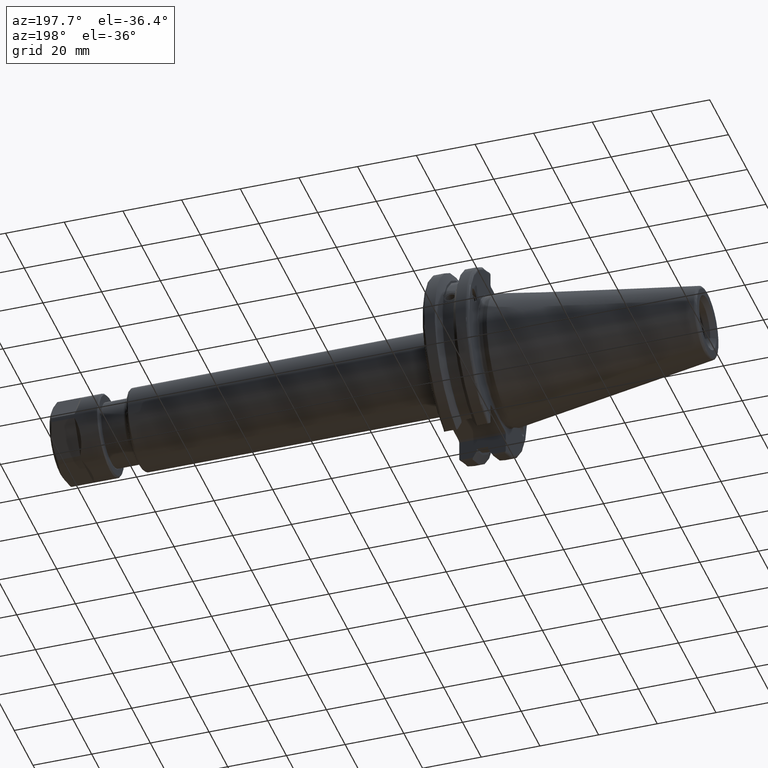
[diagram: clean part render]
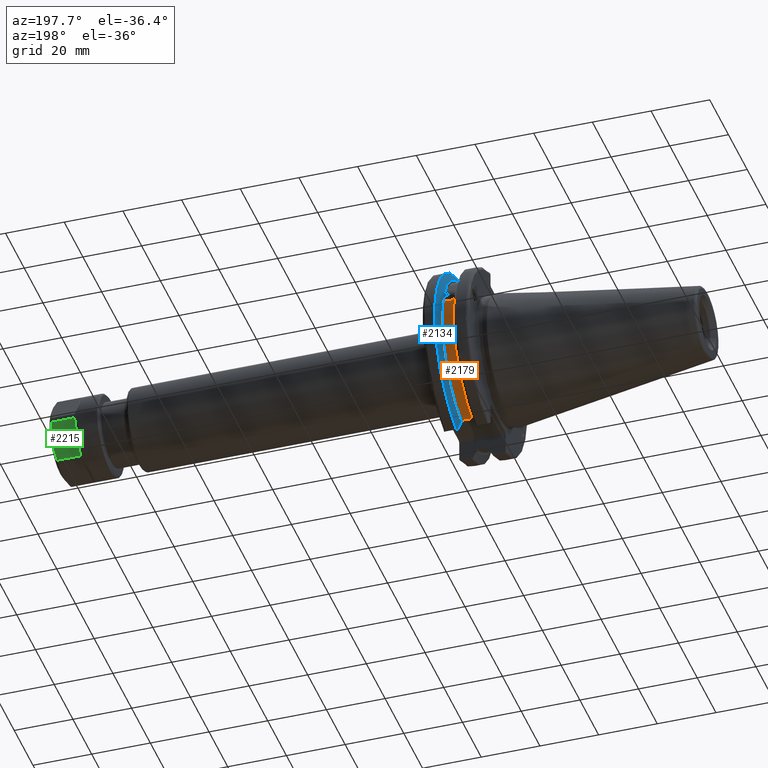
[diagram: same view with three faces highlighted in distinct colors, each labeled with its STEP entity id]
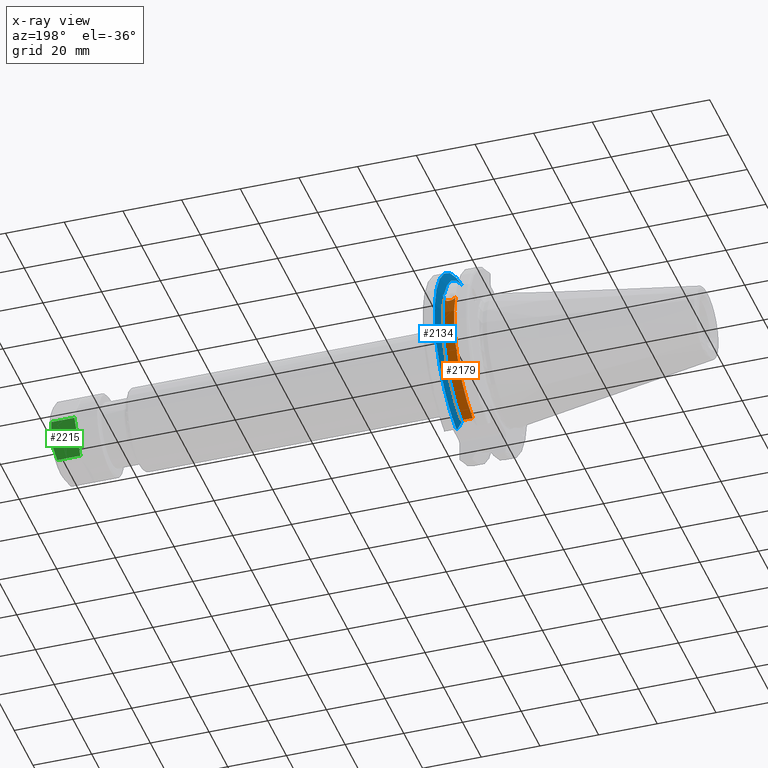
[diagram: x-ray of the same camera — body ghosted, the three highlighted faces saturated]
A machine part, auxiliary view with three faces highlighted in distinct colors.
The next image is the same camera in x-ray (body ghosted, the three faces saturated) — at least one of them is partly hidden behind the body in this view.
Their STEP definitions:

[orange] entity #2179 — the highlighted cylindrical surface (partial cylindrical patch) has radius 28.15 mm, axis along (1, 0, 0).
#134=B_SPLINE_CURVE_WITH_KNOTS('',3,(#3584,#3585,#3586,#3587,#3588,#3589,
#3590,#3591,#3592,#3593,#3594,#3595,#3596,#3597),.UNSPECIFIED.,.F.,.F.,
(4,2,2,2,2,2,4),(0.401639126382404,0.474814416953736,0.553950208498303,
0.63308600004287,0.712221791587437,0.791357583132004,0.864532873703335),
 .UNSPECIFIED.);
#257=CYLINDRICAL_SURFACE('',#2471,28.15);
#349=FACE_OUTER_BOUND('',#486,.T.);
#486=EDGE_LOOP('',(#1883,#1884,#1885,#1886));
#600=LINE('',#3784,#732);
#732=VECTOR('',#2877,10.);
#875=CIRCLE('',#2468,28.15);
#877=CIRCLE('',#2472,28.15);
#992=VERTEX_POINT('',#3581);
#993=VERTEX_POINT('',#3583);
#1035=VERTEX_POINT('',#3781);
#1036=VERTEX_POINT('',#3783);
#1234=EDGE_CURVE('',#993,#992,#134,.T.);
#1290=EDGE_CURVE('',#1036,#1035,#600,.T.);
#1351=EDGE_CURVE('',#1035,#993,#875,.T.);
#1353=EDGE_CURVE('',#1036,#992,#877,.T.);
#1883=ORIENTED_EDGE('',*,*,#1234,.T.);
#1884=ORIENTED_EDGE('',*,*,#1353,.F.);
#1885=ORIENTED_EDGE('',*,*,#1290,.T.);
#1886=ORIENTED_EDGE('',*,*,#1351,.T.);
#2179=ADVANCED_FACE('',(#349),#257,.T.);
#2468=AXIS2_PLACEMENT_3D('',#3985,#2995,#2996);
#2471=AXIS2_PLACEMENT_3D('',#3988,#3001,#3002);
#2472=AXIS2_PLACEMENT_3D('',#3989,#3003,#3004);
#2877=DIRECTION('',(-1.,0.,0.));
#2995=DIRECTION('center_axis',(1.,0.,0.));
#2996=DIRECTION('ref_axis',(0.,0.,-1.));
#3001=DIRECTION('center_axis',(1.,0.,0.));
#3002=DIRECTION('ref_axis',(0.,1.,0.));
#3003=DIRECTION('center_axis',(1.,0.,0.));
#3004=DIRECTION('ref_axis',(0.,0.,-1.));
#3581=CARTESIAN_POINT('',(13.042,26.734714844398,8.81348524641211));
#3583=CARTESIAN_POINT('',(9.212,26.734714844398,8.81348524641211));
#3584=CARTESIAN_POINT('Ctrl Pts',(9.212,26.734714844398,8.81348524641212));
#3585=CARTESIAN_POINT('Ctrl Pts',(9.31823057097183,26.8086519721597,8.58920529678291));
#3586=CARTESIAN_POINT('Ctrl Pts',(9.46972013770509,26.8729987454904,8.3841652999737));
#3587=CARTESIAN_POINT('Ctrl Pts',(9.8284706265741,26.9778908791383,8.04056861831092));
#3588=CARTESIAN_POINT('Ctrl Pts',(10.0645450112988,27.0233016799732,7.88512567185903));
#3589=CARTESIAN_POINT('Ctrl Pts',(10.5819125426388,27.0826966800569,7.6786444840004));
#3590=CARTESIAN_POINT('Ctrl Pts',(10.8632140281848,27.0968804077294,7.62768458768513));
#3591=CARTESIAN_POINT('Ctrl Pts',(11.3907859718152,27.0968804077294,7.62768458768513));
#3592=CARTESIAN_POINT('Ctrl Pts',(11.6720874573612,27.0826966800569,7.6786444840004));
#3593=CARTESIAN_POINT('Ctrl Pts',(12.1894549887012,27.0233016799732,7.88512567185903));
#3594=CARTESIAN_POINT('Ctrl Pts',(12.4255293734259,26.9778908791383,8.04056861831092));
#3595=CARTESIAN_POINT('Ctrl Pts',(12.7842798622949,26.8729987454904,8.3841652999737));
#3596=CARTESIAN_POINT('Ctrl Pts',(12.9357694290282,26.8086519721597,8.58920529678291));
#3597=CARTESIAN_POINT('Ctrl Pts',(13.042,26.734714844398,8.81348524641212));
#3781=CARTESIAN_POINT('',(9.212,8.19,-26.932255754021));
#3783=CARTESIAN_POINT('',(13.042,8.19,-26.932255754021));
#3784=CARTESIAN_POINT('',(11.127,8.19,-26.932255754021));
#3985=CARTESIAN_POINT('Origin',(9.212,0.,0.));
#3988=CARTESIAN_POINT('Origin',(11.127,0.,0.));
#3989=CARTESIAN_POINT('Origin',(13.042,0.,0.));

[blue] entity #2134 — the highlighted conical surface has half-angle 60 deg.
#69=(
BOUNDED_CURVE()
B_SPLINE_CURVE(2,(#3648,#3649,#3650),.UNSPECIFIED.,.F.,.F.)
B_SPLINE_CURVE_WITH_KNOTS((3,3),(0.,0.276549142796799),.UNSPECIFIED.)
CURVE()
GEOMETRIC_REPRESENTATION_ITEM()
RATIONAL_B_SPLINE_CURVE((1.,1.00095203904259,1.00031614445126))
REPRESENTATION_ITEM('')
);
#70=(
BOUNDED_CURVE()
B_SPLINE_CURVE(2,(#3652,#3653,#3654),.UNSPECIFIED.,.F.,.F.)
B_SPLINE_CURVE_WITH_KNOTS((3,3),(0.,0.0639048713675657),.UNSPECIFIED.)
CURVE()
GEOMETRIC_REPRESENTATION_ITEM()
RATIONAL_B_SPLINE_CURVE((1.,1.00028444218289,1.00047644010584))
REPRESENTATION_ITEM('')
);
#71=(
BOUNDED_CURVE()
B_SPLINE_CURVE(2,(#3658,#3659,#3660),.UNSPECIFIED.,.F.,.F.)
B_SPLINE_CURVE_WITH_KNOTS((3,3),(0.329353533631213,0.393258405001023),
 .UNSPECIFIED.)
CURVE()
GEOMETRIC_REPRESENTATION_ITEM()
RATIONAL_B_SPLINE_CURVE((1.00047644010591,1.00028444218294,1.))
REPRESENTATION_ITEM('')
);
#72=(
BOUNDED_CURVE()
B_SPLINE_CURVE(2,(#3662,#3663,#3664),.UNSPECIFIED.,.F.,.F.)
B_SPLINE_CURVE_WITH_KNOTS((3,3),(0.0550586467390499,0.33160778953585),
 .UNSPECIFIED.)
CURVE()
GEOMETRIC_REPRESENTATION_ITEM()
RATIONAL_B_SPLINE_CURVE((1.00031614445126,1.00095203904259,1.))
REPRESENTATION_ITEM('')
);
#133=B_SPLINE_CURVE_WITH_KNOTS('',3,(#3573,#3574,#3575,#3576,#3577,#3578,
#3579,#3580),.UNSPECIFIED.,.F.,.F.,(4,2,2,4),(0.451995700189024,0.46454782854766,
0.504528771685165,0.544509714822671),.UNSPECIFIED.);
#137=B_SPLINE_CURVE_WITH_KNOTS('',3,(#3635,#3636,#3637,#3638,#3639,#3640,
#3641,#3642),.UNSPECIFIED.,.F.,.F.,(4,2,2,4),(0.544509714822671,0.584490657960176,
0.624471601097681,0.637023729456318),.UNSPECIFIED.);
#304=FACE_OUTER_BOUND('',#436,.T.);
#436=EDGE_LOOP('',(#1639,#1640,#1641,#1642,#1643,#1644,#1645,#1646,#1647));
#844=CIRCLE('',#2393,28.9593772964944);
#845=CIRCLE('',#2394,31.75);
#846=CIRCLE('',#2395,28.9593772964944);
#990=VERTEX_POINT('',#3570);
#991=VERTEX_POINT('',#3572);
#998=VERTEX_POINT('',#3633);
#999=VERTEX_POINT('',#3645);
#1000=VERTEX_POINT('',#3647);
#1001=VERTEX_POINT('',#3651);
#1002=VERTEX_POINT('',#3655);
#1003=VERTEX_POINT('',#3657);
#1004=VERTEX_POINT('',#3661);
#1232=EDGE_CURVE('',#991,#990,#133,.T.);
#1240=EDGE_CURVE('',#990,#998,#137,.T.);
#1241=EDGE_CURVE('',#998,#999,#844,.T.);
#1242=EDGE_CURVE('',#999,#1000,#69,.T.);
#1243=EDGE_CURVE('',#1001,#1000,#70,.T.);
#1244=EDGE_CURVE('',#1002,#1001,#845,.T.);
#1245=EDGE_CURVE('',#1003,#1002,#71,.T.);
#1246=EDGE_CURVE('',#1003,#1004,#72,.T.);
#1247=EDGE_CURVE('',#1004,#991,#846,.T.);
#1639=ORIENTED_EDGE('',*,*,#1232,.T.);
#1640=ORIENTED_EDGE('',*,*,#1240,.T.);
#1641=ORIENTED_EDGE('',*,*,#1241,.T.);
#1642=ORIENTED_EDGE('',*,*,#1242,.T.);
#1643=ORIENTED_EDGE('',*,*,#1243,.F.);
#1644=ORIENTED_EDGE('',*,*,#1244,.F.);
#1645=ORIENTED_EDGE('',*,*,#1245,.F.);
#1646=ORIENTED_EDGE('',*,*,#1246,.T.);
#1647=ORIENTED_EDGE('',*,*,#1247,.T.);
#2086=CONICAL_SURFACE('',#2392,30.3546886482472,1.0471975511966);
#2134=ADVANCED_FACE('',(#304),#2086,.T.);
#2392=AXIS2_PLACEMENT_3D('',#3644,#2793,#2794);
#2393=AXIS2_PLACEMENT_3D('',#3646,#2795,#2796);
#2394=AXIS2_PLACEMENT_3D('',#3656,#2797,#2798);
#2395=AXIS2_PLACEMENT_3D('',#3665,#2799,#2800);
#2793=DIRECTION('center_axis',(1.,0.,0.));
#2794=DIRECTION('ref_axis',(0.,1.,0.));
#2795=DIRECTION('center_axis',(1.,0.,0.));
#2796=DIRECTION('ref_axis',(0.,0.,-1.));
#2797=DIRECTION('center_axis',(1.,0.,0.));
#2798=DIRECTION('ref_axis',(0.,0.,-1.));
#2799=DIRECTION('center_axis',(1.,0.,0.));
#2800=DIRECTION('ref_axis',(0.,0.,-1.));
#3570=CARTESIAN_POINT('',(13.227,27.51401829017,10.0142836826778));
#3572=CARTESIAN_POINT('',(13.042,27.4956274489925,9.09043478536247));
#3573=CARTESIAN_POINT('Ctrl Pts',(13.042,27.4956274489925,9.09043478536247));
#3574=CARTESIAN_POINT('Ctrl Pts',(13.0561204071996,27.5087667900418,9.12860597076219));
#3575=CARTESIAN_POINT('Ctrl Pts',(13.0695929817857,27.5206055003512,9.16696618806878));
#3576=CARTESIAN_POINT('Ctrl Pts',(13.122981441159,27.5642934663232,9.32791534028656));
#3577=CARTESIAN_POINT('Ctrl Pts',(13.1611197084175,27.5867382255984,9.46717946402648));
#3578=CARTESIAN_POINT('Ctrl Pts',(13.2133106446058,27.5847569104122,9.74771639360672));
#3579=CARTESIAN_POINT('Ctrl Pts',(13.227,27.559599249844,9.8890510252165));
#3580=CARTESIAN_POINT('Ctrl Pts',(13.227,27.51401829017,10.0142836826778));
#3633=CARTESIAN_POINT('',(13.042,26.9060914640648,10.7101715919071));
#3635=CARTESIAN_POINT('Ctrl Pts',(13.227,27.51401829017,10.0142836826778));
#3636=CARTESIAN_POINT('Ctrl Pts',(13.227,27.4684373304961,10.139516340139));
#3637=CARTESIAN_POINT('Ctrl Pts',(13.2133106446058,27.3968610665578,10.2639559818059));
#3638=CARTESIAN_POINT('Ctrl Pts',(13.1611197084175,27.2180531796526,10.4801333026531));
#3639=CARTESIAN_POINT('Ctrl Pts',(13.122981441159,27.1113422433189,10.5723885976054));
#3640=CARTESIAN_POINT('Ctrl Pts',(13.0695929817857,26.9744191989197,10.6676007180673));
#3641=CARTESIAN_POINT('Ctrl Pts',(13.0561204071996,26.9406927482839,10.6893765730703));
#3642=CARTESIAN_POINT('Ctrl Pts',(13.042,26.9060914640648,10.7101715919071));
#3644=CARTESIAN_POINT('Origin',(13.8475833845378,0.,0.));
#3645=CARTESIAN_POINT('',(13.042,8.19,27.7771386827498));
#3646=CARTESIAN_POINT('Origin',(13.042,0.,0.));
#3647=CARTESIAN_POINT('',(14.3744146964874,8.19,30.1755016258903));
#3648=CARTESIAN_POINT('Ctrl Pts',(13.042,8.19,27.7771386827498));
#3649=CARTESIAN_POINT('Ctrl Pts',(13.6806364384741,8.19,28.930368953967));
#3650=CARTESIAN_POINT('Ctrl Pts',(14.3744146964874,8.19,30.1755016258903));
#3651=CARTESIAN_POINT('',(14.6531667690756,8.67204822802685,30.5427254764662));
#3652=CARTESIAN_POINT('Ctrl Pts',(14.6531667690756,8.67204822802686,30.5427254764662));
#3653=CARTESIAN_POINT('Ctrl Pts',(14.5121085187837,8.42917748262643,30.3577067892629));
#3654=CARTESIAN_POINT('Ctrl Pts',(14.3744146964874,8.19,30.1755016258903));
#3655=CARTESIAN_POINT('',(14.6531667690756,8.67204822802685,-30.5427254764662));
#3656=CARTESIAN_POINT('Origin',(14.6531667690756,0.,0.));
#3657=CARTESIAN_POINT('',(14.3744146964874,8.19,-30.1755016258903));
#3658=CARTESIAN_POINT('Ctrl Pts',(14.3744146964874,8.19,-30.1755016258903));
#3659=CARTESIAN_POINT('Ctrl Pts',(14.5121085187884,8.42917748263462,-30.3577067892692));
#3660=CARTESIAN_POINT('Ctrl Pts',(14.6531667690756,8.67204822802685,-30.5427254764662));
#3661=CARTESIAN_POINT('',(13.042,8.19,-27.7771386827498));
#3662=CARTESIAN_POINT('Ctrl Pts',(14.3744146964874,8.19,-30.1755016258903));
#3663=CARTESIAN_POINT('Ctrl Pts',(13.6806364384741,8.19,-28.930368953967));
#3664=CARTESIAN_POINT('Ctrl Pts',(13.042,8.19,-27.7771386827498));
#3665=CARTESIAN_POINT('Origin',(13.042,0.,0.));

[green] entity #2215 — the highlighted planar face has unit normal (0, -0.866, 0.5).
#85=(
BOUNDED_CURVE()
B_SPLINE_CURVE(2,(#4114,#4115,#4116),.UNSPECIFIED.,.F.,.F.)
B_SPLINE_CURVE_WITH_KNOTS((3,3),(1.76676018698417,3.88699167916846),
 .UNSPECIFIED.)
CURVE()
GEOMETRIC_REPRESENTATION_ITEM()
RATIONAL_B_SPLINE_CURVE((1.57887257803575,1.76833728739999,1.57887257803583))
REPRESENTATION_ITEM('')
);
#226=PLANE('',#2547);
#385=FACE_OUTER_BOUND('',#530,.T.);
#530=EDGE_LOOP('',(#2058,#2059,#2060,#2061));
#660=LINE('',#4164,#792);
#661=LINE('',#4167,#793);
#665=LINE('',#4177,#797);
#792=VECTOR('',#3173,7.856624327026);
#793=VECTOR('',#3176,7.856624327026);
#797=VECTOR('',#3192,12.6095202129196);
#1101=VERTEX_POINT('',#4111);
#1102=VERTEX_POINT('',#4113);
#1118=VERTEX_POINT('',#4163);
#1119=VERTEX_POINT('',#4165);
#1405=EDGE_CURVE('',#1102,#1101,#85,.T.);
#1430=EDGE_CURVE('',#1118,#1102,#660,.T.);
#1432=EDGE_CURVE('',#1119,#1101,#661,.T.);
#1436=EDGE_CURVE('',#1118,#1119,#665,.T.);
#2058=ORIENTED_EDGE('',*,*,#1436,.F.);
#2059=ORIENTED_EDGE('',*,*,#1430,.T.);
#2060=ORIENTED_EDGE('',*,*,#1405,.T.);
#2061=ORIENTED_EDGE('',*,*,#1432,.F.);
#2215=ADVANCED_FACE('',(#385),#226,.F.);
#2547=AXIS2_PLACEMENT_3D('',#4176,#3190,#3191);
#3173=DIRECTION('',(1.,0.,0.));
#3176=DIRECTION('',(1.,0.,0.));
#3190=DIRECTION('center_axis',(0.,-0.866025403784429,0.500000000000017));
#3191=DIRECTION('ref_axis',(0.,-0.500000000000017,-0.866025403784429));
#3192=DIRECTION('',(0.,-0.500000000000017,-0.866025403784429));
#4111=CARTESIAN_POINT('',(7.306624327026,7.672937494076,-11.71008241696));
#4113=CARTESIAN_POINT('',(7.306624327026,13.97769760054,-0.7899175830396));
#4114=CARTESIAN_POINT('Ctrl Pts',(7.30662432702171,13.9776976005394,-0.789917583040281));
#4115=CARTESIAN_POINT('Ctrl Pts',(8.94588669847094,10.8253175473094,-6.25000000000109));
#4116=CARTESIAN_POINT('Ctrl Pts',(7.30662432702252,7.67293749407968,-11.7100824169614));
#4163=CARTESIAN_POINT('',(-0.55,13.97769760054,-0.7899175830396));
#4164=CARTESIAN_POINT('',(-0.55,13.97769760054,-0.7899175830396));
#4165=CARTESIAN_POINT('',(-0.55,7.672937494076,-11.71008241696));
#4167=CARTESIAN_POINT('',(-0.55,7.672937494076,-11.71008241696));
#4176=CARTESIAN_POINT('Origin',(8.75,15.82531754731,2.410254037844));
#4177=CARTESIAN_POINT('',(-0.55,13.97769760054,-0.7899175830396));